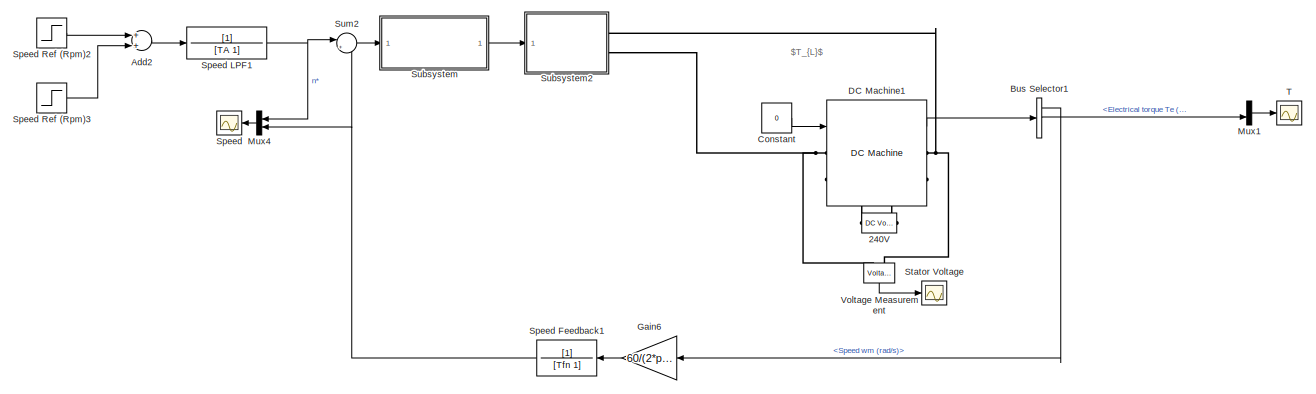
[diagram: root canvas - part 1/2, middle right region]
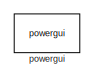
[diagram: root canvas - part 2/2, bottom left region]
MODEL slx_d6c6f084c6c6
KIND model
CONFIG AbsTol = auto
CONFIG EnableMultiTasking = off
CONFIG FixedStep = auto
CONFIG MaxStep = 1e-6
CONFIG MinStep = auto
CONFIG RelTol = 1e-3
CONFIG SampleTimeConstraint = Unconstrained
CONFIG Solver = ode45
CONFIG SolverName = ode45
CONFIG StartTime = 0.0
CONFIG StopTime = 0.5
BLOCK [Reference] 240V  REF=powerlib/Electrical
Sources/DC Voltage Source
  Ports = [0, 0, 0, 0, 0, 1, 1]
  SourceBlock = powerlib/Electrical\nSources/DC Voltage Source
  SourceProductBaseCode = PS
  SourceProductName = Simscape Electrical
  SourceType = DC Voltage Source
BLOCK [Sum] Add2
  InputSameDT = off
  OutDataTypeStr = Inherit: Inherit via internal rule
  Ports = [2, 1]
  SaturateOnIntegerOverflow = off
BLOCK [BusSelector] Bus Selector1
  OutputAsBus = off
  OutputSignals = Speed wm (rad/s),Electrical torque Te (n m),Armature current ia (A)
  Ports = [1, 3]
BLOCK [Constant] Constant
  Value = 0
BLOCK [Reference] DC Machine1  REF=powerlib/Machines/DC Machine
  Ports = [1, 1, 0, 0, 0, 2, 2]
  SourceBlock = powerlib/Machines/DC Machine
  SourceProductBaseCode = PS
  SourceProductName = Simscape Electrical
  SourceType = DC machine
BLOCK [Gain] Gain6
  Gain = 60/(2*pi)
  OutDataTypeStr = Inherit: Inherit via internal rule
  ParamDataTypeStr = Inherit: Inherit via internal rule
  SaturateOnIntegerOverflow = off
BLOCK [Mux] Mux1
  DisplayOption = bar
  Inputs = 2
  Ports = [2, 1]
BLOCK [Mux] Mux4
  DisplayOption = bar
  Inputs = 2
  Ports = [2, 1]
BLOCK [Scope] Speed
  Floating = off
  NumInputPorts = 1
  Ports = [1]
  ScopeSpecificationString = Simulink.scopes.TimeScopeBlockCfg('CurrentConfiguration', extmgr.ConfigurationSet(extmgr.Configuration('Core','General UI',true,'FigureColor',[1 1 1]),extmgr.Configuration('Core','Source UI',true),extmgr.Configuration('Sources','WiredSimulink',true,'DataLoggingVariableName','ScopeData4'),extmgr.Configuration('Visuals','Time Domain',true,'SerializedDisplays',{struct('MinYLimReal','-157.94325','MaxY...<+1706ch>
BLOCK [TransferFcn] Speed Feedback1
  Denominator = [Tfn 1]
BLOCK [TransferFcn] Speed LPF1
  Denominator = [TA 1]
BLOCK [Step] Speed Ref (Rpm)2
  After = 0.8*nN
  SampleTime = 0
  Time = 0.05
BLOCK [Step] Speed Ref (Rpm)3
  After = -0.3*nN
  SampleTime = 0
  Time = 0.4
  VectorParams1D = off
BLOCK [Scope] Stator Voltage
  Floating = off
  NumInputPorts = 1
  Ports = [1]
  ScopeSpecificationString = Simulink.scopes.TimeScopeBlockCfg('CurrentConfiguration', extmgr.ConfigurationSet(extmgr.Configuration('Core','General UI',true,'FigureColor',[1 1 1]),extmgr.Configuration('Core','Source UI',true),extmgr.Configuration('Sources','WiredSimulink',true,'DataLoggingVariableName','ScopeData7'),extmgr.Configuration('Visuals','Time Domain',true,'SerializedDisplays',{struct('MinYLimReal','-388.18721','MaxY...<+1612ch>
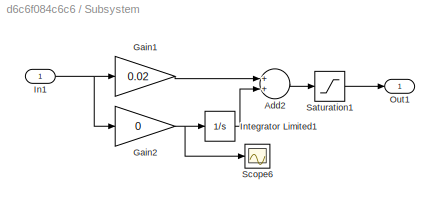
BLOCK [SubSystem] Subsystem
  Ports = [1, 1]
  RequestExecContextInheritance = off
BLOCK [Sum] Subsystem/Add2
  InputSameDT = off
  OutDataTypeStr = Inherit: Inherit via internal rule
  Ports = [2, 1]
  SaturateOnIntegerOverflow = off
BLOCK [Gain] Subsystem/Gain1
  Gain = 0.02
  OutDataTypeStr = Inherit: Inherit via internal rule
  ParamDataTypeStr = Inherit: Inherit via internal rule
  SaturateOnIntegerOverflow = off
BLOCK [Gain] Subsystem/Gain2
  Gain = 0
  OutDataTypeStr = Inherit: Inherit via internal rule
  ParamDataTypeStr = Inherit: Inherit via internal rule
  SaturateOnIntegerOverflow = off
BLOCK [Inport] Subsystem/In1
  IconDisplay = Port number
BLOCK [Integrator] Subsystem/Integrator Limited1
  LimitOutput = on
  LowerSaturationLimit = 0
  Ports = [1, 1]
  UpperSaturationLimit = 2*IaN
BLOCK [Outport] Subsystem/Out1
  IconDisplay = Port number
BLOCK [Saturate] Subsystem/Saturation1
  InputPortMap = u0
  LowerLimit = -2*IaN
  Ports = [1, 1]
  UpperLimit = 2*IaN
BLOCK [Scope] Subsystem/Scope6
  Floating = off
  NumInputPorts = 1
  Ports = [1]
  ScopeSpecificationString = Simulink.scopes.TimeScopeBlockCfg('CurrentConfiguration', extmgr.ConfigurationSet(extmgr.Configuration('Core','General UI',true),extmgr.Configuration('Core','Source UI',true),extmgr.Configuration('Sources','WiredSimulink',true,'DataLoggingVariableName','ScopeData6'),extmgr.Configuration('Visuals','Time Domain',true,'SerializedDisplays',{struct('MinYLimReal','-1.00000','MaxYLimReal','1.00000','YLab...<+1395ch>
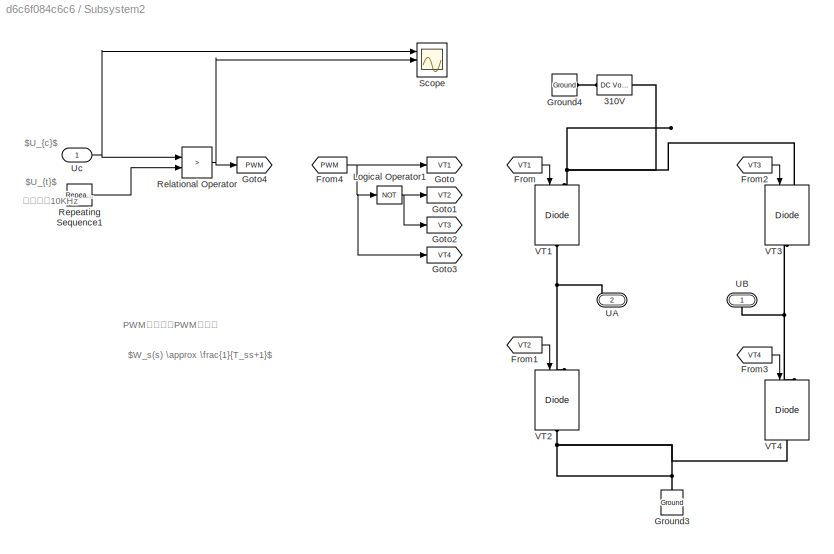
BLOCK [SubSystem] Subsystem2
  Ports = [1, 0, 0, 0, 0, 0, 2]
  RequestExecContextInheritance = off
BLOCK [Reference] Subsystem2/310V  REF=powerlib/Electrical
Sources/DC Voltage Source
  Ports = [0, 0, 0, 0, 0, 1, 1]
  SourceBlock = powerlib/Electrical\nSources/DC Voltage Source
  SourceProductBaseCode = PS
  SourceProductName = Simscape Electrical
  SourceType = DC Voltage Source
BLOCK [From] Subsystem2/From
  GotoTag = VT1
BLOCK [From] Subsystem2/From1
  GotoTag = VT2
BLOCK [From] Subsystem2/From2
  GotoTag = VT3
BLOCK [From] Subsystem2/From3
  GotoTag = VT4
BLOCK [From] Subsystem2/From4
  GotoTag = PWM
BLOCK [Goto] Subsystem2/Goto
  GotoTag = VT1
BLOCK [Goto] Subsystem2/Goto1
  GotoTag = VT2
BLOCK [Goto] Subsystem2/Goto2
  GotoTag = VT3
BLOCK [Goto] Subsystem2/Goto3
  GotoTag = VT4
BLOCK [Goto] Subsystem2/Goto4
  GotoTag = PWM
BLOCK [Reference] Subsystem2/Ground3  REF=powerlib/Elements/Ground
  Ports = [0, 0, 0, 0, 0, 1]
  SourceBlock = powerlib/Elements/Ground
  SourceProductBaseCode = PS
  SourceProductName = Simscape Electrical
  SourceType = Ground
BLOCK [Reference] Subsystem2/Ground4  REF=powerlib/Elements/Ground
  Ports = [0, 0, 0, 0, 0, 1]
  SourceBlock = powerlib/Elements/Ground
  SourceProductBaseCode = PS
  SourceProductName = Simscape Electrical
  SourceType = Ground
BLOCK [Logic] Subsystem2/Logical Operator1
  AllPortsSameDT = off
  Operator = NOT
  OutDataTypeStr = boolean
  Ports = [1, 1]
BLOCK [RelationalOperator] Subsystem2/Relational Operator
  InputSameDT = off
  Operator = >
  OutDataTypeStr = boolean
  Ports = [2, 1]
  RndMeth = Simplest
BLOCK [Reference] Subsystem2/Repeating Sequence1  REF=simulink/Sources/Repeating
Sequence
  Ports = [0, 1]
  SourceBlock = simulink/Sources/Repeating\nSequence
  SourceProductBaseCode = SL
  SourceProductName = Simulink
  SourceType = Repeating table
BLOCK [Scope] Subsystem2/Scope
  Floating = off
  NumInputPorts = 3
  Ports = [3]
  ScopeSpecificationString = Simulink.scopes.TimeScopeBlockCfg('CurrentConfiguration', extmgr.ConfigurationSet(extmgr.Configuration('Core','General UI',true,'FigureColor',[1 1 1]),extmgr.Configuration('Core','Source UI',true),extmgr.Configuration('Sources','WiredSimulink',true,'DataLoggingVariableName','ScopeData1'),extmgr.Configuration('Visuals','Time Domain',true,'SerializedDisplays',{struct('MinYLimReal','-0.125','MaxYLimR...<+1918ch>
BLOCK [PMIOPort] Subsystem2/UA
  Port = 2
  Side = Right
BLOCK [PMIOPort] Subsystem2/UB
  Side = Right
BLOCK [Inport] Subsystem2/Uc
  IconDisplay = Port number
BLOCK [Reference] Subsystem2/VT1  REF=powerlib/Power
Electronics/IGBT//Diode
  Ports = [1, 0, 0, 0, 0, 1, 1]
  SourceBlock = powerlib/Power\nElectronics/IGBT//Diode
  SourceProductBaseCode = PS
  SourceProductName = Simscape Electrical
  SourceType = IGBT/Diode
BLOCK [Reference] Subsystem2/VT2  REF=powerlib/Power
Electronics/IGBT//Diode
  Ports = [1, 0, 0, 0, 0, 1, 1]
  SourceBlock = powerlib/Power\nElectronics/IGBT//Diode
  SourceProductBaseCode = PS
  SourceProductName = Simscape Electrical
  SourceType = IGBT/Diode
BLOCK [Reference] Subsystem2/VT3  REF=powerlib/Power
Electronics/IGBT//Diode
  Ports = [1, 0, 0, 0, 0, 1, 1]
  SourceBlock = powerlib/Power\nElectronics/IGBT//Diode
  SourceProductBaseCode = PS
  SourceProductName = Simscape Electrical
  SourceType = IGBT/Diode
BLOCK [Reference] Subsystem2/VT4  REF=powerlib/Power
Electronics/IGBT//Diode
  Ports = [1, 0, 0, 0, 0, 1, 1]
  SourceBlock = powerlib/Power\nElectronics/IGBT//Diode
  SourceProductBaseCode = PS
  SourceProductName = Simscape Electrical
  SourceType = IGBT/Diode
BLOCK [Sum] Sum2
  IconShape = round
  InputSameDT = off
  Inputs = |+-
  OutDataTypeStr = Inherit: Inherit via internal rule
  Ports = [2, 1]
  SaturateOnIntegerOverflow = off
BLOCK [Scope] T
  Floating = off
  NumInputPorts = 1
  Ports = [1]
  ScopeSpecificationString = Simulink.scopes.TimeScopeBlockCfg('CurrentConfiguration', extmgr.ConfigurationSet(extmgr.Configuration('Core','General UI',true,'FigureColor',[1 1 1]),extmgr.Configuration('Core','Source UI',true),extmgr.Configuration('Sources','WiredSimulink',true,'DataLoggingVariableName','ScopeData8'),extmgr.Configuration('Visuals','Time Domain',true,'SerializedDisplays',{struct('MinYLimReal','-4.35831','MaxYLi...<+1670ch>
BLOCK [Reference] Voltage Measurement  REF=powerlib/Measurements/Voltage Measurement
  Ports = [0, 1, 0, 0, 0, 2]
  SourceBlock = powerlib/Measurements/Voltage Measurement
  SourceProductBaseCode = PS
  SourceProductName = Simscape Electrical
  SourceType = Voltage Measurement
  UserDataPersistent = on
BLOCK [Reference] powergui  REF=powerlib/powergui
  Ports = []
  Priority = 1
  SourceBlock = powerlib/powergui
  SourceProductBaseCode = PS
  SourceProductName = Simscape Electrical
  SourceType = PSB option menu block
ANNOTATION (root): $T_{L}$
ANNOTATION Subsystem2: PWM控制器与PWM变换器
ANNOTATION Subsystem2: 载波频率10KHz
ANNOTATION Subsystem2: $U_{c}$
ANNOTATION Subsystem2: $U_{t}$
ANNOTATION Subsystem2: $W_s(s) \approx \frac{1}{T_ss+1}$
LINE Add2:1 -> Speed LPF1:1
LINE Bus Selector1:1 -> Gain6:1
LINE Bus Selector1:2 -> Mux1:2
LINE Constant:1 -> DC Machine1:1
LINE DC Machine1:1 -> Bus Selector1:1
LINE Gain6:1 -> Speed Feedback1:1
LINE Mux1:1 -> T:1
LINE Mux4:1 -> Speed:1
NET Speed Feedback1:1 -> Mux4:2, Sum2:2
NET Speed LPF1:1 -> Mux4:1, Sum2:1
LINE Speed Ref (Rpm)2:1 -> Add2:1
LINE Speed Ref (Rpm)3:1 -> Add2:2
LINE Subsystem/Add2:1 -> Subsystem/Saturation1:1
LINE Subsystem/Gain1:1 -> Subsystem/Add2:1
NET Subsystem/Gain2:1 -> Subsystem/Integrator Limited1:1, Subsystem/Scope6:1
NET Subsystem/In1:1 -> Subsystem/Gain1:1, Subsystem/Gain2:1
LINE Subsystem/Integrator Limited1:1 -> Subsystem/Add2:2
LINE Subsystem/Saturation1:1 -> Subsystem/Out1:1
LINE Subsystem2/From1:1 -> Subsystem2/VT2:1
LINE Subsystem2/From2:1 -> Subsystem2/VT3:1
LINE Subsystem2/From3:1 -> Subsystem2/VT4:1
NET Subsystem2/From4:1 -> Subsystem2/Goto3:1, Subsystem2/Goto:1, Subsystem2/Logical Operator1:1
LINE Subsystem2/From:1 -> Subsystem2/VT1:1
NET Subsystem2/Logical Operator1:1 -> Subsystem2/Goto1:1, Subsystem2/Goto2:1
NET Subsystem2/Relational Operator:1 -> Subsystem2/Goto4:1, Subsystem2/Scope:2
LINE Subsystem2/Repeating Sequence1:1 -> Subsystem2/Relational Operator:2
NET Subsystem2/Uc:1 -> Subsystem2/Relational Operator:1, Subsystem2/Scope:1
LINE Subsystem:1 -> Subsystem2:1
LINE Sum2:1 -> Subsystem:1
LINE Voltage Measurement:1 -> Stator Voltage:1
PLINE 240V:LConn1 -- DC Machine1:RConn2
PLINE 240V:RConn1 -- DC Machine1:LConn2
PNET net1: DC Machine1:LConn1 -- Subsystem2:RConn2 -- Voltage Measurement:LConn1
PNET net2: DC Machine1:RConn1 -- Subsystem2:RConn1 -- Voltage Measurement:LConn2
PLINE Subsystem2/310V:LConn1 -- Subsystem2/Ground4:LConn1
PNET net3: Subsystem2/310V:RConn1 -- Subsystem2/VT1:LConn1 -- Subsystem2/VT3:LConn1
PNET net4: Subsystem2/Ground3:LConn1 -- Subsystem2/VT2:RConn1 -- Subsystem2/VT4:RConn1
PNET net5: Subsystem2/UA:RConn1 -- Subsystem2/VT1:RConn1 -- Subsystem2/VT2:LConn1
PNET net6: Subsystem2/UB:RConn1 -- Subsystem2/VT3:RConn1 -- Subsystem2/VT4:LConn1
note: NET lines group one-source signal fan-out (src -> all destinations, sorted); 1:1 wires keep LINE; PNET lines group multi-terminal physical nets as a canonical sorted terminal list (undirected conserving connections); 2-terminal nets keep the pairwise PLINE form
